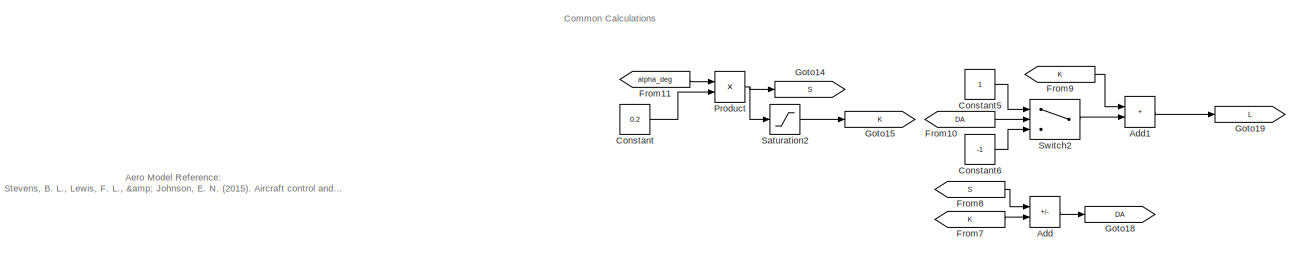
[diagram: root canvas - part 1/3, full width, top band]
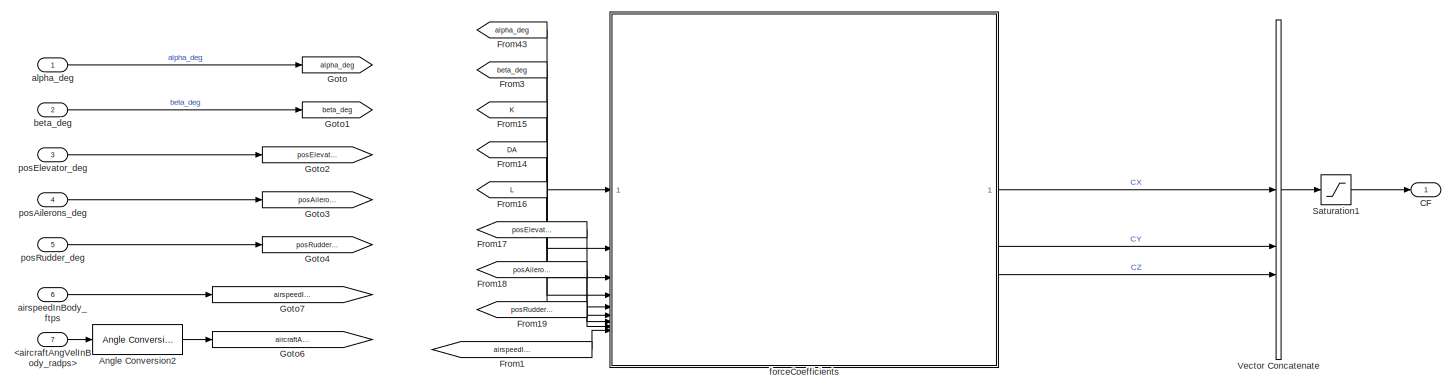
[diagram: root canvas - part 2/3, full width, middle band]
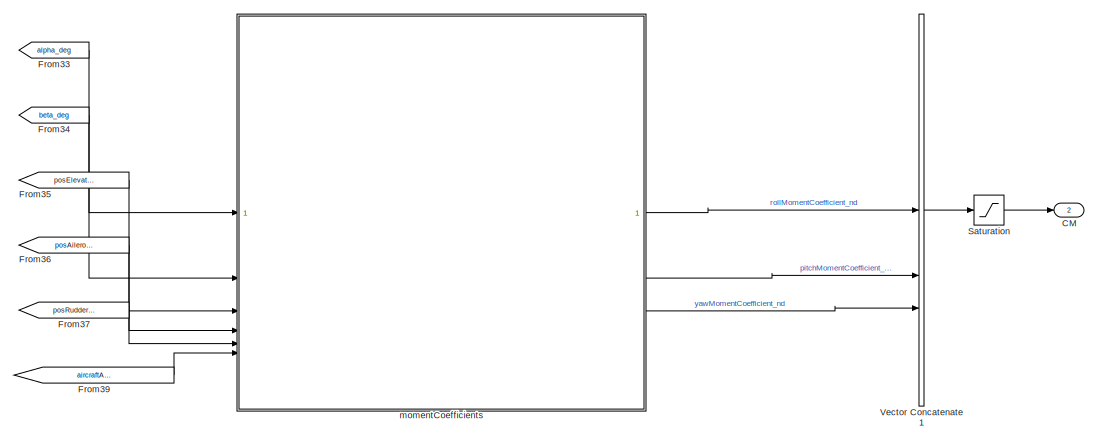
[diagram: root canvas - part 3/3, bottom center region]
MODEL slx_c9f8ccfc1ec4
KIND model
BLOCK [Inport] <aircraftAngVelInBody_radps>
  Port = 7
BLOCK [Sum] Add
  IconShape = rectangular
  Inputs = +-
BLOCK [Sum] Add1
  IconShape = rectangular
BLOCK [Reference] Angle Conversion2  REF=aerolibconvert2/Angle Conversion
  SourceBlock = aerolibconvert2/Angle Conversion
  SourceType = Angle Conversion
BLOCK [Outport] CF
BLOCK [Outport] CM
  Port = 2
BLOCK [Constant] Constant
  Value = 0.2
BLOCK [Constant] Constant5
BLOCK [Constant] Constant6
  Value = -1
BLOCK [From] From1
  GotoTag = airspeedInBody_ftps
BLOCK [From] From10
  GotoTag = DA
BLOCK [From] From11
  GotoTag = alpha_deg
BLOCK [From] From14
  GotoTag = DA
BLOCK [From] From15
  GotoTag = K
BLOCK [From] From16
  GotoTag = L
BLOCK [From] From17
  GotoTag = posElevator_deg
BLOCK [From] From18
  GotoTag = posAilerons_deg
BLOCK [From] From19
  GotoTag = posRudder_deg
BLOCK [From] From3
  GotoTag = beta_deg
BLOCK [From] From33
  GotoTag = alpha_deg
BLOCK [From] From34
  GotoTag = beta_deg
BLOCK [From] From35
  GotoTag = posElevator_deg
BLOCK [From] From36
  GotoTag = posAilerons_deg
BLOCK [From] From37
  GotoTag = posRudder_deg
BLOCK [From] From39
  GotoTag = aircraftAngVelInBody_degps
BLOCK [From] From43
  GotoTag = alpha_deg
BLOCK [From] From7
  GotoTag = K
BLOCK [From] From8
  GotoTag = S
BLOCK [From] From9
  GotoTag = K
BLOCK [Goto] Goto
  GotoTag = alpha_deg
BLOCK [Goto] Goto1
  GotoTag = beta_deg
BLOCK [Goto] Goto14
  GotoTag = S
BLOCK [Goto] Goto15
  GotoTag = K
BLOCK [Goto] Goto18
  GotoTag = DA
BLOCK [Goto] Goto19
  GotoTag = L
BLOCK [Goto] Goto2
  GotoTag = posElevator_deg
BLOCK [Goto] Goto3
  GotoTag = posAilerons_deg
BLOCK [Goto] Goto4
  GotoTag = posRudder_deg
BLOCK [Goto] Goto6
  GotoTag = aircraftAngVelInBody_degps
BLOCK [Goto] Goto7
  GotoTag = airspeedInBody_ftps
BLOCK [Product] Product
BLOCK [Saturate] Saturation
  LowerLimit = -3
  UpperLimit = 3
BLOCK [Saturate] Saturation1
  LowerLimit = -30
  UpperLimit = 30
BLOCK [Saturate] Saturation2
  LowerLimit = -1
  UpperLimit = 8
BLOCK [Switch] Switch2
  InputSameDT = off
  SaturateOnIntegerOverflow = off
BLOCK [Concatenate] Vector Concatenate
  NumInputs = 3
BLOCK [Concatenate] Vector Concatenate1
  NumInputs = 3
BLOCK [Inport] airspeedInBody_ftps
  Port = 6
  PortDimensions = [3]
BLOCK [Inport] alpha_deg
BLOCK [Inport] beta_deg
  Port = 2
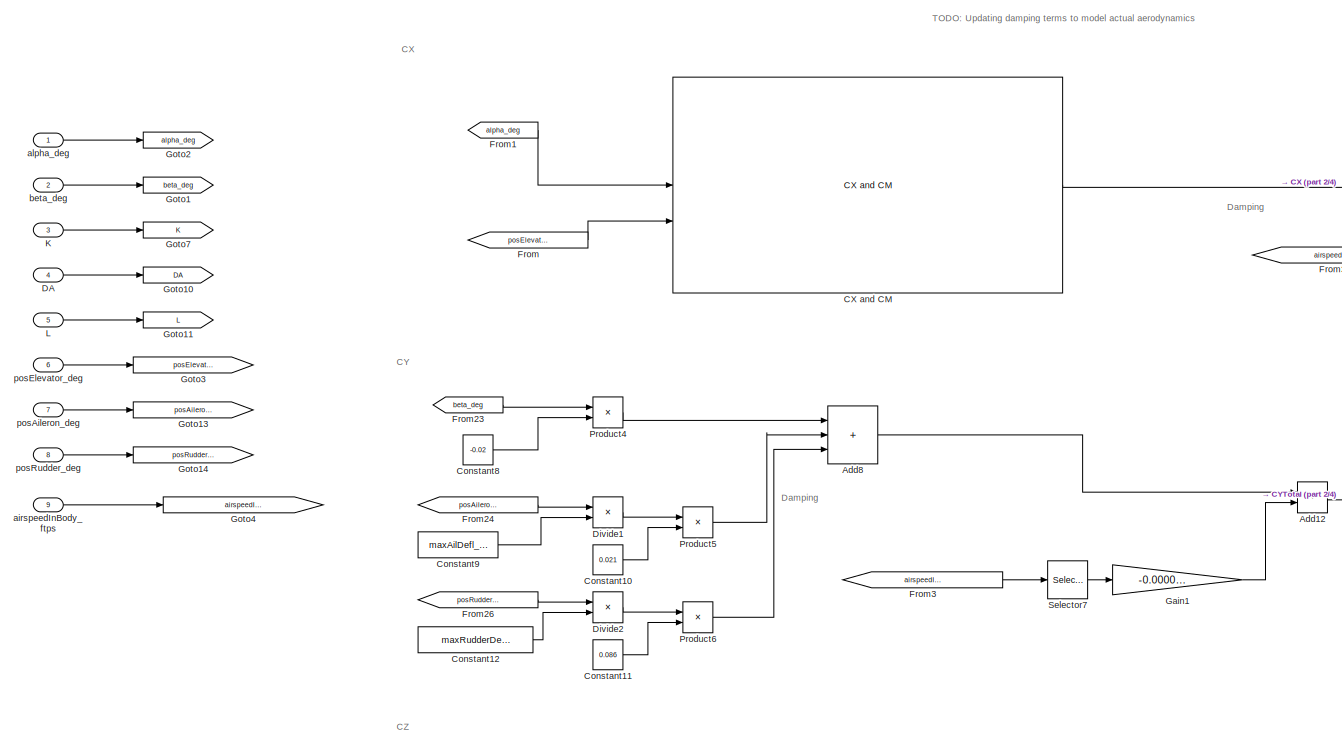
[diagram: forceCoefficients - part 1/4, middle left region]
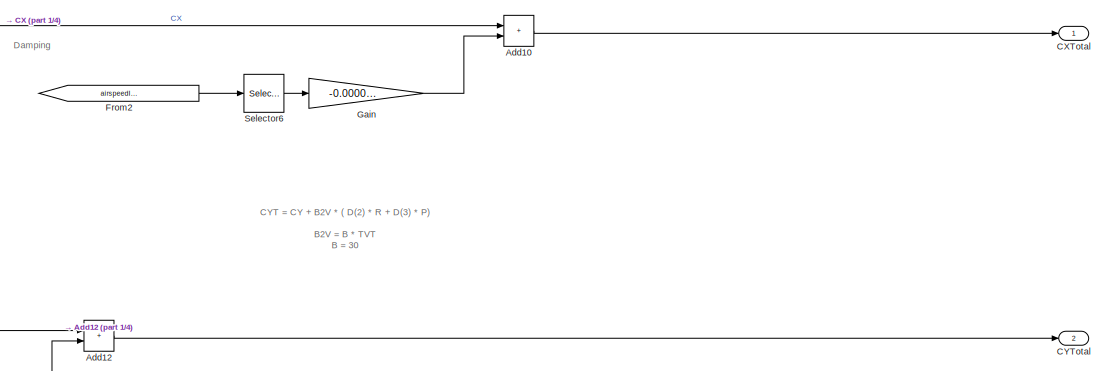
[diagram: forceCoefficients - part 2/4, top right region]
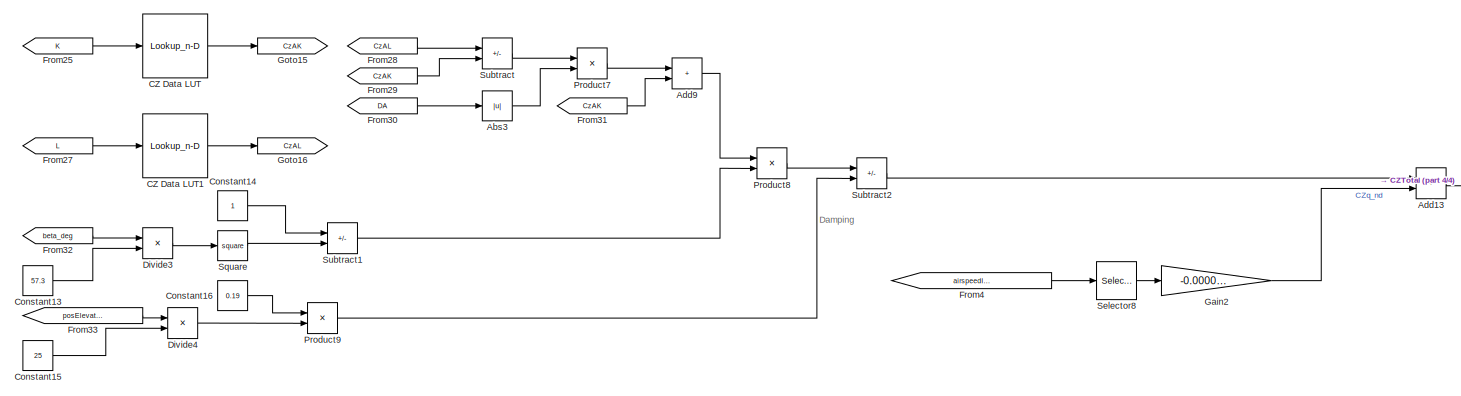
[diagram: forceCoefficients - part 3/4, bottom center region]
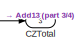
[diagram: forceCoefficients - part 4/4, bottom right region]
BLOCK [SubSystem] forceCoefficients
BLOCK [Abs] forceCoefficients/Abs3
  SaturateOnIntegerOverflow = off
BLOCK [Sum] forceCoefficients/Add10
  IconShape = rectangular
BLOCK [Sum] forceCoefficients/Add12
  IconShape = rectangular
BLOCK [Sum] forceCoefficients/Add13
  IconShape = rectangular
BLOCK [Sum] forceCoefficients/Add8
  IconShape = rectangular
  Inputs = +++
BLOCK [Sum] forceCoefficients/Add9
  IconShape = rectangular
BLOCK [Reference] forceCoefficients/CX and CM  REF=AeroCoefficientLibrary/CX and CM
  SourceBlock = AeroCoefficientLibrary/CX and CM
BLOCK [Outport] forceCoefficients/CXTotal
BLOCK [Outport] forceCoefficients/CYTotal
  Port = 2
BLOCK [Lookup_n-D] forceCoefficients/CZ Data LUT
  BreakpointsForDimension1 = alphaBkpts_nd
  DiagnosticForOutOfRangeInput = Warning
  ExtrapMethod = Clip
  InputPortMap = u0
  InternalRulePriority = Speed
  NumberOfTableDimensions = 1
  RndMeth = Simplest
  Table = CZ
BLOCK [Lookup_n-D] forceCoefficients/CZ Data LUT1
  BreakpointsForDimension1 = alphaBkpts_nd
  DiagnosticForOutOfRangeInput = Warning
  ExtrapMethod = Clip
  InputPortMap = u0
  InternalRulePriority = Speed
  NumberOfTableDimensions = 1
  RndMeth = Simplest
  Table = CZ
BLOCK [Outport] forceCoefficients/CZTotal
  Port = 3
BLOCK [Constant] forceCoefficients/Constant10
  Value = 0.021
BLOCK [Constant] forceCoefficients/Constant11
  Value = 0.086
BLOCK [Constant] forceCoefficients/Constant12
  Value = maxRudderDefl_deg
BLOCK [Constant] forceCoefficients/Constant13
  Value = 57.3
BLOCK [Constant] forceCoefficients/Constant14
BLOCK [Constant] forceCoefficients/Constant15
  Value = 25
BLOCK [Constant] forceCoefficients/Constant16
  Value = 0.19
BLOCK [Constant] forceCoefficients/Constant8
  Value = -0.02
BLOCK [Constant] forceCoefficients/Constant9
  Value = maxAilDefl_deg
BLOCK [Inport] forceCoefficients/DA
  Port = 4
BLOCK [Product] forceCoefficients/Divide1
  Inputs = */
BLOCK [Product] forceCoefficients/Divide2
  Inputs = */
BLOCK [Product] forceCoefficients/Divide3
  Inputs = */
BLOCK [Product] forceCoefficients/Divide4
  Inputs = */
BLOCK [From] forceCoefficients/From
  GotoTag = posElevator_deg
BLOCK [From] forceCoefficients/From1
  GotoTag = alpha_deg
BLOCK [From] forceCoefficients/From2
  GotoTag = airspeedInBody_ftps
BLOCK [From] forceCoefficients/From23
  GotoTag = beta_deg
BLOCK [From] forceCoefficients/From24
  GotoTag = posAileron_deg
BLOCK [From] forceCoefficients/From25
  GotoTag = K
BLOCK [From] forceCoefficients/From26
  GotoTag = posRudder_deg
BLOCK [From] forceCoefficients/From27
  GotoTag = L
BLOCK [From] forceCoefficients/From28
  GotoTag = CzAL
BLOCK [From] forceCoefficients/From29
  GotoTag = CzAK
BLOCK [From] forceCoefficients/From3
  GotoTag = airspeedInBody_ftps
BLOCK [From] forceCoefficients/From30
  GotoTag = DA
BLOCK [From] forceCoefficients/From31
  GotoTag = CzAK
BLOCK [From] forceCoefficients/From32
  GotoTag = beta_deg
BLOCK [From] forceCoefficients/From33
  GotoTag = posElevator_deg
BLOCK [From] forceCoefficients/From4
  GotoTag = airspeedInBody_ftps
BLOCK [Gain] forceCoefficients/Gain
  Gain = -0.0000055
BLOCK [Gain] forceCoefficients/Gain1
  Gain = -0.0000055
BLOCK [Gain] forceCoefficients/Gain2
  Gain = -0.0000055
BLOCK [Goto] forceCoefficients/Goto1
  GotoTag = beta_deg
BLOCK [Goto] forceCoefficients/Goto10
  GotoTag = DA
BLOCK [Goto] forceCoefficients/Goto11
  GotoTag = L
BLOCK [Goto] forceCoefficients/Goto13
  GotoTag = posAileron_deg
BLOCK [Goto] forceCoefficients/Goto14
  GotoTag = posRudder_deg
BLOCK [Goto] forceCoefficients/Goto15
  GotoTag = CzAK
BLOCK [Goto] forceCoefficients/Goto16
  GotoTag = CzAL
BLOCK [Goto] forceCoefficients/Goto2
  GotoTag = alpha_deg
BLOCK [Goto] forceCoefficients/Goto3
  GotoTag = posElevator_deg
BLOCK [Goto] forceCoefficients/Goto4
  GotoTag = airspeedInBody_ftps
BLOCK [Goto] forceCoefficients/Goto7
  GotoTag = K
BLOCK [Inport] forceCoefficients/K
  Port = 3
BLOCK [Inport] forceCoefficients/L
  Port = 5
BLOCK [Product] forceCoefficients/Product4
BLOCK [Product] forceCoefficients/Product5
BLOCK [Product] forceCoefficients/Product6
BLOCK [Product] forceCoefficients/Product7
BLOCK [Product] forceCoefficients/Product8
BLOCK [Product] forceCoefficients/Product9
BLOCK [Selector] forceCoefficients/Selector6
  IndexOptions = Index vector (dialog)
  Indices = 1
  InputPortWidth = 3
  OutputSizes = 1
BLOCK [Selector] forceCoefficients/Selector7
  IndexOptions = Index vector (dialog)
  Indices = 2
  InputPortWidth = 3
  OutputSizes = 1
BLOCK [Selector] forceCoefficients/Selector8
  IndexOptions = Index vector (dialog)
  Indices = 3
  InputPortWidth = 3
  OutputSizes = 1
BLOCK [Math] forceCoefficients/Square
  Operator = square
BLOCK [Sum] forceCoefficients/Subtract
  IconShape = rectangular
  Inputs = +-
BLOCK [Sum] forceCoefficients/Subtract1
  IconShape = rectangular
  Inputs = +-
BLOCK [Sum] forceCoefficients/Subtract2
  IconShape = rectangular
  Inputs = +-
BLOCK [Inport] forceCoefficients/airspeedInBody_ftps
  Port = 9
BLOCK [Inport] forceCoefficients/alpha_deg
BLOCK [Inport] forceCoefficients/beta_deg
  Port = 2
BLOCK [Inport] forceCoefficients/posAileron_deg
  Port = 7
BLOCK [Inport] forceCoefficients/posElevator_deg
  Port = 6
BLOCK [Inport] forceCoefficients/posRudder_deg
  Port = 8
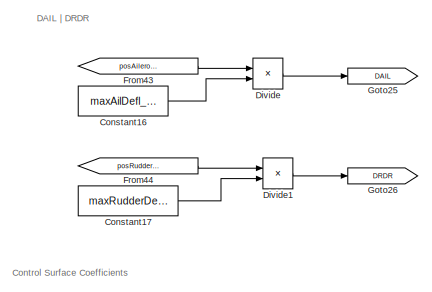
[diagram: momentCoefficients - part 1/8, top left region]
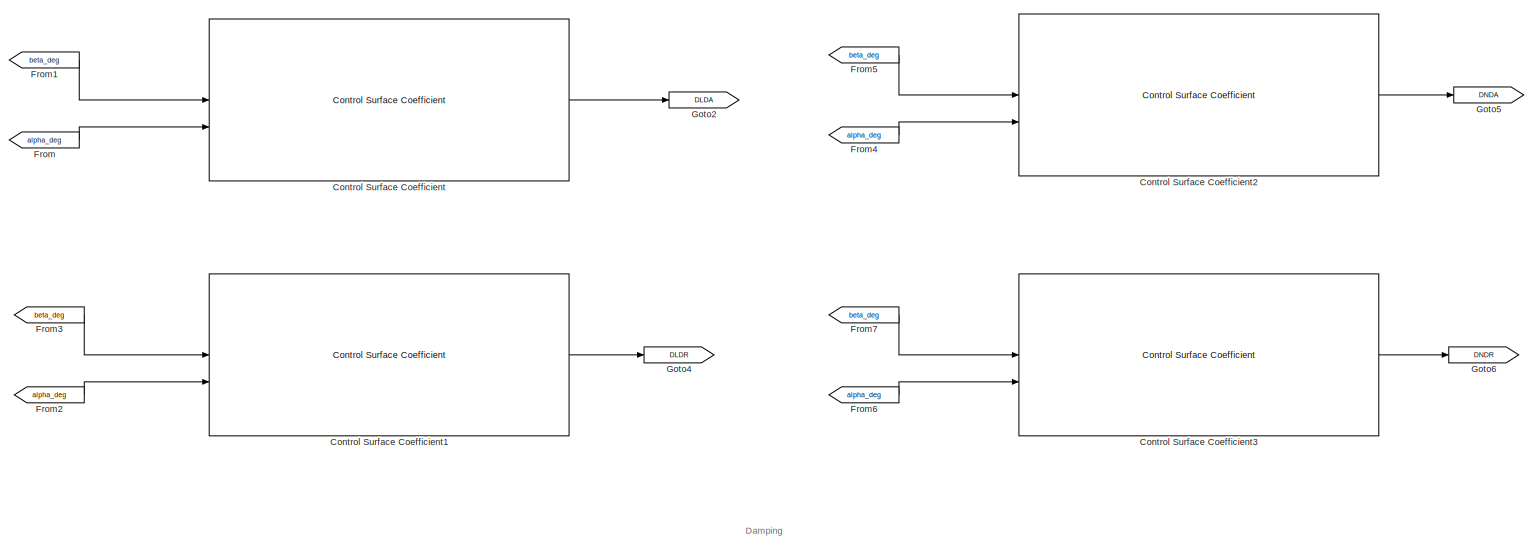
[diagram: momentCoefficients - part 2/8, top center region]
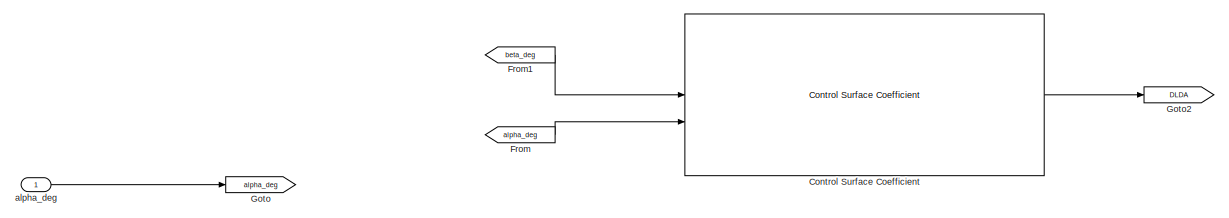
[diagram: momentCoefficients - part 3/8, top left region]
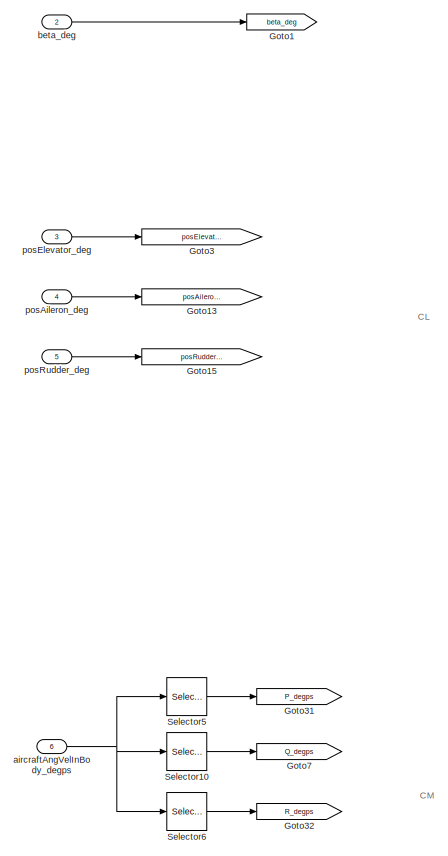
[diagram: momentCoefficients - part 4/8, middle left region]
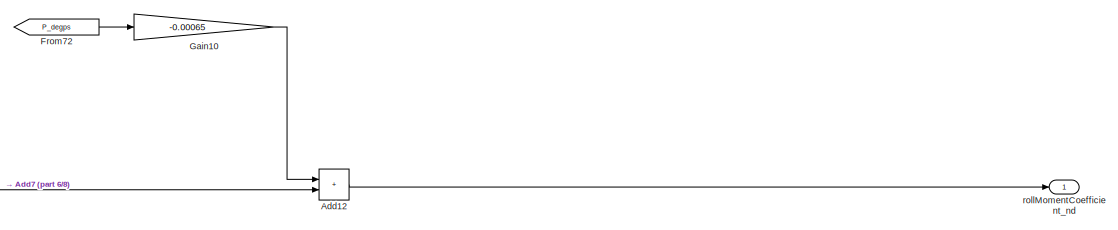
[diagram: momentCoefficients - part 5/8, middle right region]
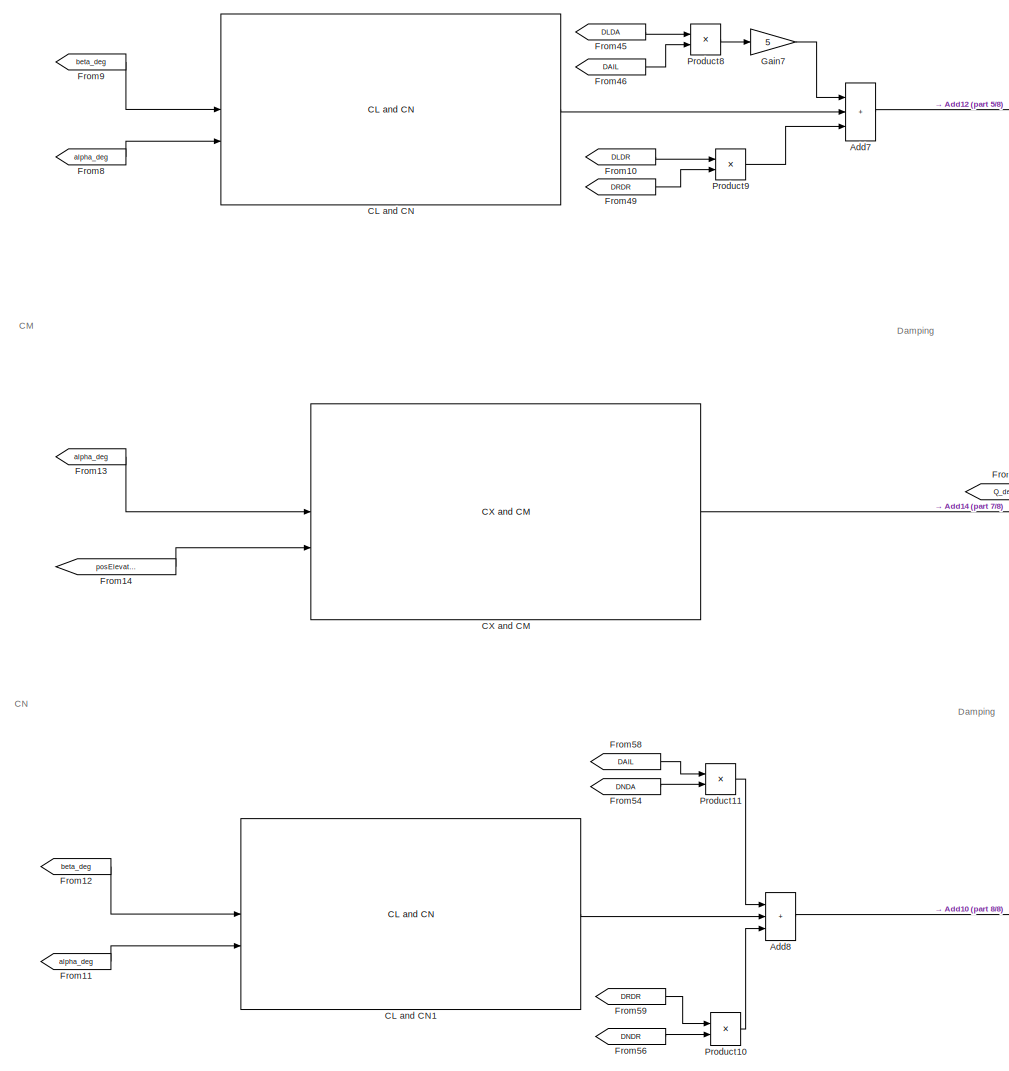
[diagram: momentCoefficients - part 6/8, bottom center region]
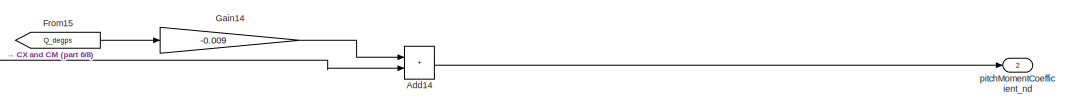
[diagram: momentCoefficients - part 7/8, bottom right region]
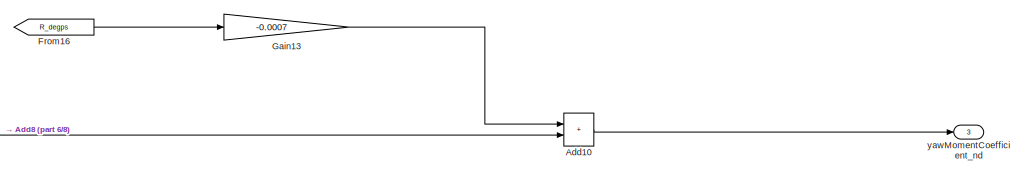
[diagram: momentCoefficients - part 8/8, bottom right region]
BLOCK [SubSystem] momentCoefficients
BLOCK [Sum] momentCoefficients/Add10
  IconShape = rectangular
BLOCK [Sum] momentCoefficients/Add12
  IconShape = rectangular
BLOCK [Sum] momentCoefficients/Add14
  IconShape = rectangular
BLOCK [Sum] momentCoefficients/Add7
  IconShape = rectangular
  Inputs = +++
BLOCK [Sum] momentCoefficients/Add8
  IconShape = rectangular
  Inputs = +++
BLOCK [Reference] momentCoefficients/CL and CN  REF=AeroCoefficientLibrary/CL and CN
  SourceBlock = AeroCoefficientLibrary/CL and CN
BLOCK [Reference] momentCoefficients/CL and CN1  REF=AeroCoefficientLibrary/CL and CN
  SourceBlock = AeroCoefficientLibrary/CL and CN
BLOCK [Reference] momentCoefficients/CX and CM  REF=AeroCoefficientLibrary/CX and CM
  SourceBlock = AeroCoefficientLibrary/CX and CM
BLOCK [Constant] momentCoefficients/Constant16
  Value = maxAilDefl_deg
BLOCK [Constant] momentCoefficients/Constant17
  Value = maxRudderDefl_deg
BLOCK [Reference] momentCoefficients/Control Surface Coefficient  REF=AeroCoefficientLibrary/Control Surface Coefficient
  SourceBlock = AeroCoefficientLibrary/Control Surface Coefficient
BLOCK [Reference] momentCoefficients/Control Surface Coefficient1  REF=AeroCoefficientLibrary/Control Surface Coefficient
  SourceBlock = AeroCoefficientLibrary/Control Surface Coefficient
BLOCK [Reference] momentCoefficients/Control Surface Coefficient2  REF=AeroCoefficientLibrary/Control Surface Coefficient
  SourceBlock = AeroCoefficientLibrary/Control Surface Coefficient
BLOCK [Reference] momentCoefficients/Control Surface Coefficient3  REF=AeroCoefficientLibrary/Control Surface Coefficient
  SourceBlock = AeroCoefficientLibrary/Control Surface Coefficient
BLOCK [Product] momentCoefficients/Divide
  Inputs = */
BLOCK [Product] momentCoefficients/Divide1
  Inputs = */
BLOCK [From] momentCoefficients/From
  GotoTag = alpha_deg
BLOCK [From] momentCoefficients/From1
  GotoTag = beta_deg
BLOCK [From] momentCoefficients/From10
  GotoTag = DLDR
BLOCK [From] momentCoefficients/From11
  GotoTag = alpha_deg
BLOCK [From] momentCoefficients/From12
  GotoTag = beta_deg
BLOCK [From] momentCoefficients/From13
  GotoTag = alpha_deg
BLOCK [From] momentCoefficients/From14
  GotoTag = posElevator_deg
BLOCK [From] momentCoefficients/From15
  GotoTag = Q_degps
BLOCK [From] momentCoefficients/From16
  GotoTag = R_degps
BLOCK [From] momentCoefficients/From2
  GotoTag = alpha_deg
BLOCK [From] momentCoefficients/From3
  GotoTag = beta_deg
BLOCK [From] momentCoefficients/From4
  GotoTag = alpha_deg
BLOCK [From] momentCoefficients/From43
  GotoTag = posAileron_deg
BLOCK [From] momentCoefficients/From44
  GotoTag = posRudder_deg
BLOCK [From] momentCoefficients/From45
  GotoTag = DLDA
BLOCK [From] momentCoefficients/From46
  GotoTag = DAIL
BLOCK [From] momentCoefficients/From49
  GotoTag = DRDR
BLOCK [From] momentCoefficients/From5
  GotoTag = beta_deg
BLOCK [From] momentCoefficients/From54
  GotoTag = DNDA
BLOCK [From] momentCoefficients/From56
  GotoTag = DNDR
BLOCK [From] momentCoefficients/From58
  GotoTag = DAIL
BLOCK [From] momentCoefficients/From59
  GotoTag = DRDR
BLOCK [From] momentCoefficients/From6
  GotoTag = alpha_deg
BLOCK [From] momentCoefficients/From7
  GotoTag = beta_deg
BLOCK [From] momentCoefficients/From72
  GotoTag = P_degps
BLOCK [From] momentCoefficients/From8
  GotoTag = alpha_deg
BLOCK [From] momentCoefficients/From9
  GotoTag = beta_deg
BLOCK [Gain] momentCoefficients/Gain10
  Gain = -0.00065
  NameLocation = top
BLOCK [Gain] momentCoefficients/Gain13
  Gain = -0.0007
  NameLocation = top
BLOCK [Gain] momentCoefficients/Gain14
  Gain = -0.009
  NameLocation = top
BLOCK [Gain] momentCoefficients/Gain7
  Gain = 5
BLOCK [Goto] momentCoefficients/Goto
  GotoTag = alpha_deg
BLOCK [Goto] momentCoefficients/Goto1
  GotoTag = beta_deg
BLOCK [Goto] momentCoefficients/Goto13
  GotoTag = posAileron_deg
BLOCK [Goto] momentCoefficients/Goto15
  GotoTag = posRudder_deg
BLOCK [Goto] momentCoefficients/Goto2
  GotoTag = DLDA
BLOCK [Goto] momentCoefficients/Goto25
  GotoTag = DAIL
BLOCK [Goto] momentCoefficients/Goto26
  GotoTag = DRDR
BLOCK [Goto] momentCoefficients/Goto3
  GotoTag = posElevator_deg
BLOCK [Goto] momentCoefficients/Goto31
  GotoTag = P_degps
BLOCK [Goto] momentCoefficients/Goto32
  GotoTag = R_degps
BLOCK [Goto] momentCoefficients/Goto4
  GotoTag = DLDR
BLOCK [Goto] momentCoefficients/Goto5
  GotoTag = DNDA
BLOCK [Goto] momentCoefficients/Goto6
  GotoTag = DNDR
BLOCK [Goto] momentCoefficients/Goto7
  GotoTag = Q_degps
BLOCK [Product] momentCoefficients/Product10
BLOCK [Product] momentCoefficients/Product11
BLOCK [Product] momentCoefficients/Product8
BLOCK [Product] momentCoefficients/Product9
BLOCK [Selector] momentCoefficients/Selector10
  IndexOptions = Index vector (dialog)
  Indices = 2
  InputPortWidth = 3
  OutputSizes = 1
BLOCK [Selector] momentCoefficients/Selector5
  IndexOptions = Index vector (dialog)
  Indices = 1
  InputPortWidth = 3
  OutputSizes = 1
BLOCK [Selector] momentCoefficients/Selector6
  IndexOptions = Index vector (dialog)
  Indices = 3
  InputPortWidth = 3
  OutputSizes = 1
BLOCK [Inport] momentCoefficients/aircraftAngVelInBody_degps
  Port = 6
BLOCK [Inport] momentCoefficients/alpha_deg
BLOCK [Inport] momentCoefficients/beta_deg
  Port = 2
BLOCK [Outport] momentCoefficients/pitchMomentCoefficient_nd
  Port = 2
BLOCK [Inport] momentCoefficients/posAileron_deg
  Port = 4
BLOCK [Inport] momentCoefficients/posElevator_deg
  Port = 3
BLOCK [Inport] momentCoefficients/posRudder_deg
  Port = 5
BLOCK [Outport] momentCoefficients/rollMomentCoefficient_nd
BLOCK [Outport] momentCoefficients/yawMomentCoefficient_nd
  Port = 3
BLOCK [Inport] posAilerons_deg
  Port = 4
BLOCK [Inport] posElevator_deg
  Port = 3
BLOCK [Inport] posRudder_deg
  Port = 5
ANNOTATION (root): Aero Model Reference: Stevens, B. L., Lewis, F. L., & Johnson, E. N. (2015). Aircraft control and simulation: Dynamics, controls design, and autonomous systems: Third edition . wiley. https://doi.org/10.1002/9781119174882
ANNOTATION (root): Common Calculations
ANNOTATION forceCoefficients: CX
ANNOTATION forceCoefficients: CY
ANNOTATION forceCoefficients: CYT = CY + B2V * ( D(2) * R + D(3) * P) B2V = B * TVT B = 30
ANNOTATION forceCoefficients: CZ
ANNOTATION forceCoefficients: Damping
ANNOTATION forceCoefficients: TODO: Updating damping terms to model actual aerodynamics
ANNOTATION momentCoefficients: CL
ANNOTATION momentCoefficients: CM
ANNOTATION momentCoefficients: CN
ANNOTATION momentCoefficients: Control Surface Coefficients
ANNOTATION momentCoefficients: DAIL | DRDR
ANNOTATION momentCoefficients: Damping
LINE <aircraftAngVelInBody_radps>:1 -> Angle Conversion2:1
LINE Add1:1 -> Goto19:1
LINE Add:1 -> Goto18:1
LINE Angle Conversion2:1 -> Goto6:1
LINE Constant5:1 -> Switch2:1
LINE Constant6:1 -> Switch2:3
LINE Constant:1 -> Product:2
LINE From10:1 -> Switch2:2
LINE From11:1 -> Product:1
LINE From14:1 -> forceCoefficients:4
LINE From15:1 -> forceCoefficients:3
LINE From16:1 -> forceCoefficients:5
LINE From17:1 -> forceCoefficients:6
LINE From18:1 -> forceCoefficients:7
LINE From19:1 -> forceCoefficients:8
LINE From1:1 -> forceCoefficients:9
LINE From33:1 -> momentCoefficients:1
LINE From34:1 -> momentCoefficients:2
LINE From35:1 -> momentCoefficients:3
LINE From36:1 -> momentCoefficients:4
LINE From37:1 -> momentCoefficients:5
LINE From39:1 -> momentCoefficients:6
LINE From3:1 -> forceCoefficients:2
LINE From43:1 -> forceCoefficients:1
LINE From7:1 -> Add:2
LINE From8:1 -> Add:1
LINE From9:1 -> Add1:1
NET Product:1 -> Goto14:1, Saturation2:1
LINE Saturation1:1 -> CF:1
LINE Saturation2:1 -> Goto15:1
LINE Saturation:1 -> CM:1
LINE Switch2:1 -> Add1:2
LINE Vector Concatenate1:1 -> Saturation:1
LINE Vector Concatenate:1 -> Saturation1:1
LINE airspeedInBody_ftps:1 -> Goto7:1
LINE alpha_deg:1 -> Goto:1
LINE beta_deg:1 -> Goto1:1
LINE forceCoefficients/Abs3:1 -> forceCoefficients/Product7:2
LINE forceCoefficients/Add10:1 -> forceCoefficients/CXTotal:1
LINE forceCoefficients/Add12:1 -> forceCoefficients/CYTotal:1
LINE forceCoefficients/Add13:1 -> forceCoefficients/CZTotal:1
LINE forceCoefficients/Add8:1 -> forceCoefficients/Add12:1
LINE forceCoefficients/Add9:1 -> forceCoefficients/Product8:1
LINE forceCoefficients/CX and CM:1 -> forceCoefficients/Add10:1
LINE forceCoefficients/CZ Data LUT1:1 -> forceCoefficients/Goto16:1
LINE forceCoefficients/CZ Data LUT:1 -> forceCoefficients/Goto15:1
LINE forceCoefficients/Constant10:1 -> forceCoefficients/Product5:2
LINE forceCoefficients/Constant11:1 -> forceCoefficients/Product6:2
LINE forceCoefficients/Constant12:1 -> forceCoefficients/Divide2:2
LINE forceCoefficients/Constant13:1 -> forceCoefficients/Divide3:2
LINE forceCoefficients/Constant14:1 -> forceCoefficients/Subtract1:1
LINE forceCoefficients/Constant15:1 -> forceCoefficients/Divide4:2
LINE forceCoefficients/Constant16:1 -> forceCoefficients/Product9:1
LINE forceCoefficients/Constant8:1 -> forceCoefficients/Product4:2
LINE forceCoefficients/Constant9:1 -> forceCoefficients/Divide1:2
LINE forceCoefficients/DA:1 -> forceCoefficients/Goto10:1
LINE forceCoefficients/Divide1:1 -> forceCoefficients/Product5:1
LINE forceCoefficients/Divide2:1 -> forceCoefficients/Product6:1
LINE forceCoefficients/Divide3:1 -> forceCoefficients/Square:1
LINE forceCoefficients/Divide4:1 -> forceCoefficients/Product9:2
LINE forceCoefficients/From1:1 -> forceCoefficients/CX and CM:1
LINE forceCoefficients/From23:1 -> forceCoefficients/Product4:1
LINE forceCoefficients/From24:1 -> forceCoefficients/Divide1:1
LINE forceCoefficients/From25:1 -> forceCoefficients/CZ Data LUT:1
LINE forceCoefficients/From26:1 -> forceCoefficients/Divide2:1
LINE forceCoefficients/From27:1 -> forceCoefficients/CZ Data LUT1:1
LINE forceCoefficients/From28:1 -> forceCoefficients/Subtract:1
LINE forceCoefficients/From29:1 -> forceCoefficients/Subtract:2
LINE forceCoefficients/From2:1 -> forceCoefficients/Selector6:1
LINE forceCoefficients/From30:1 -> forceCoefficients/Abs3:1
LINE forceCoefficients/From31:1 -> forceCoefficients/Add9:2
LINE forceCoefficients/From32:1 -> forceCoefficients/Divide3:1
LINE forceCoefficients/From33:1 -> forceCoefficients/Divide4:1
LINE forceCoefficients/From3:1 -> forceCoefficients/Selector7:1
LINE forceCoefficients/From4:1 -> forceCoefficients/Selector8:1
LINE forceCoefficients/From:1 -> forceCoefficients/CX and CM:2
LINE forceCoefficients/Gain1:1 -> forceCoefficients/Add12:2
LINE forceCoefficients/Gain2:1 -> forceCoefficients/Add13:2
LINE forceCoefficients/Gain:1 -> forceCoefficients/Add10:2
LINE forceCoefficients/K:1 -> forceCoefficients/Goto7:1
LINE forceCoefficients/L:1 -> forceCoefficients/Goto11:1
LINE forceCoefficients/Product4:1 -> forceCoefficients/Add8:1
LINE forceCoefficients/Product5:1 -> forceCoefficients/Add8:2
LINE forceCoefficients/Product6:1 -> forceCoefficients/Add8:3
LINE forceCoefficients/Product7:1 -> forceCoefficients/Add9:1
LINE forceCoefficients/Product8:1 -> forceCoefficients/Subtract2:1
LINE forceCoefficients/Product9:1 -> forceCoefficients/Subtract2:2
LINE forceCoefficients/Selector6:1 -> forceCoefficients/Gain:1
LINE forceCoefficients/Selector7:1 -> forceCoefficients/Gain1:1
LINE forceCoefficients/Selector8:1 -> forceCoefficients/Gain2:1
LINE forceCoefficients/Square:1 -> forceCoefficients/Subtract1:2
LINE forceCoefficients/Subtract1:1 -> forceCoefficients/Product8:2
LINE forceCoefficients/Subtract2:1 -> forceCoefficients/Add13:1
LINE forceCoefficients/Subtract:1 -> forceCoefficients/Product7:1
LINE forceCoefficients/airspeedInBody_ftps:1 -> forceCoefficients/Goto4:1
LINE forceCoefficients/alpha_deg:1 -> forceCoefficients/Goto2:1
LINE forceCoefficients/beta_deg:1 -> forceCoefficients/Goto1:1
LINE forceCoefficients/posAileron_deg:1 -> forceCoefficients/Goto13:1
LINE forceCoefficients/posElevator_deg:1 -> forceCoefficients/Goto3:1
LINE forceCoefficients/posRudder_deg:1 -> forceCoefficients/Goto14:1
LINE forceCoefficients:1 -> Vector Concatenate:1
LINE forceCoefficients:2 -> Vector Concatenate:2
LINE forceCoefficients:3 -> Vector Concatenate:3
LINE momentCoefficients/Add10:1 -> momentCoefficients/yawMomentCoefficient_nd:1
LINE momentCoefficients/Add12:1 -> momentCoefficients/rollMomentCoefficient_nd:1
LINE momentCoefficients/Add14:1 -> momentCoefficients/pitchMomentCoefficient_nd:1
LINE momentCoefficients/Add7:1 -> momentCoefficients/Add12:2
LINE momentCoefficients/Add8:1 -> momentCoefficients/Add10:2
LINE momentCoefficients/CL and CN1:1 -> momentCoefficients/Add8:2
LINE momentCoefficients/CL and CN:1 -> momentCoefficients/Add7:2
LINE momentCoefficients/CX and CM:1 -> momentCoefficients/Add14:2
LINE momentCoefficients/Constant16:1 -> momentCoefficients/Divide:2
LINE momentCoefficients/Constant17:1 -> momentCoefficients/Divide1:2
LINE momentCoefficients/Control Surface Coefficient1:1 -> momentCoefficients/Goto4:1
LINE momentCoefficients/Control Surface Coefficient2:1 -> momentCoefficients/Goto5:1
LINE momentCoefficients/Control Surface Coefficient3:1 -> momentCoefficients/Goto6:1
LINE momentCoefficients/Control Surface Coefficient:1 -> momentCoefficients/Goto2:1
LINE momentCoefficients/Divide1:1 -> momentCoefficients/Goto26:1
LINE momentCoefficients/Divide:1 -> momentCoefficients/Goto25:1
LINE momentCoefficients/From10:1 -> momentCoefficients/Product9:1
LINE momentCoefficients/From11:1 -> momentCoefficients/CL and CN1:2
LINE momentCoefficients/From12:1 -> momentCoefficients/CL and CN1:1
LINE momentCoefficients/From13:1 -> momentCoefficients/CX and CM:1
LINE momentCoefficients/From14:1 -> momentCoefficients/CX and CM:2
LINE momentCoefficients/From15:1 -> momentCoefficients/Gain14:1
LINE momentCoefficients/From16:1 -> momentCoefficients/Gain13:1
LINE momentCoefficients/From1:1 -> momentCoefficients/Control Surface Coefficient:1
LINE momentCoefficients/From2:1 -> momentCoefficients/Control Surface Coefficient1:2
LINE momentCoefficients/From3:1 -> momentCoefficients/Control Surface Coefficient1:1
LINE momentCoefficients/From43:1 -> momentCoefficients/Divide:1
LINE momentCoefficients/From44:1 -> momentCoefficients/Divide1:1
LINE momentCoefficients/From45:1 -> momentCoefficients/Product8:1
LINE momentCoefficients/From46:1 -> momentCoefficients/Product8:2
LINE momentCoefficients/From49:1 -> momentCoefficients/Product9:2
LINE momentCoefficients/From4:1 -> momentCoefficients/Control Surface Coefficient2:2
LINE momentCoefficients/From54:1 -> momentCoefficients/Product11:2
LINE momentCoefficients/From56:1 -> momentCoefficients/Product10:2
LINE momentCoefficients/From58:1 -> momentCoefficients/Product11:1
LINE momentCoefficients/From59:1 -> momentCoefficients/Product10:1
LINE momentCoefficients/From5:1 -> momentCoefficients/Control Surface Coefficient2:1
LINE momentCoefficients/From6:1 -> momentCoefficients/Control Surface Coefficient3:2
LINE momentCoefficients/From72:1 -> momentCoefficients/Gain10:1
LINE momentCoefficients/From7:1 -> momentCoefficients/Control Surface Coefficient3:1
LINE momentCoefficients/From8:1 -> momentCoefficients/CL and CN:2
LINE momentCoefficients/From9:1 -> momentCoefficients/CL and CN:1
LINE momentCoefficients/From:1 -> momentCoefficients/Control Surface Coefficient:2
LINE momentCoefficients/Gain10:1 -> momentCoefficients/Add12:1
LINE momentCoefficients/Gain13:1 -> momentCoefficients/Add10:1
LINE momentCoefficients/Gain14:1 -> momentCoefficients/Add14:1
LINE momentCoefficients/Gain7:1 -> momentCoefficients/Add7:1
LINE momentCoefficients/Product10:1 -> momentCoefficients/Add8:3
LINE momentCoefficients/Product11:1 -> momentCoefficients/Add8:1
LINE momentCoefficients/Product8:1 -> momentCoefficients/Gain7:1
LINE momentCoefficients/Product9:1 -> momentCoefficients/Add7:3
LINE momentCoefficients/Selector10:1 -> momentCoefficients/Goto7:1
LINE momentCoefficients/Selector5:1 -> momentCoefficients/Goto31:1
LINE momentCoefficients/Selector6:1 -> momentCoefficients/Goto32:1
NET momentCoefficients/aircraftAngVelInBody_degps:1 -> momentCoefficients/Selector10:1, momentCoefficients/Selector5:1, momentCoefficients/Selector6:1
LINE momentCoefficients/alpha_deg:1 -> momentCoefficients/Goto:1
LINE momentCoefficients/beta_deg:1 -> momentCoefficients/Goto1:1
LINE momentCoefficients/posAileron_deg:1 -> momentCoefficients/Goto13:1
LINE momentCoefficients/posElevator_deg:1 -> momentCoefficients/Goto3:1
LINE momentCoefficients/posRudder_deg:1 -> momentCoefficients/Goto15:1
LINE momentCoefficients:1 -> Vector Concatenate1:1
LINE momentCoefficients:2 -> Vector Concatenate1:2
LINE momentCoefficients:3 -> Vector Concatenate1:3
LINE posAilerons_deg:1 -> Goto3:1
LINE posElevator_deg:1 -> Goto2:1
LINE posRudder_deg:1 -> Goto4:1
note: NET lines group one-source signal fan-out (src -> all destinations, sorted); 1:1 wires keep LINE
